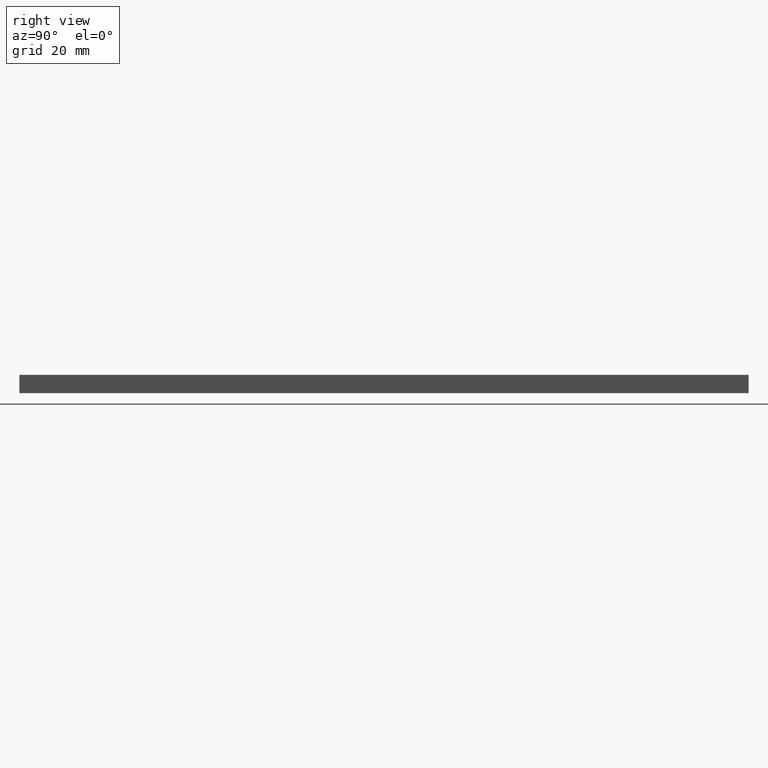
[diagram: clean part render]
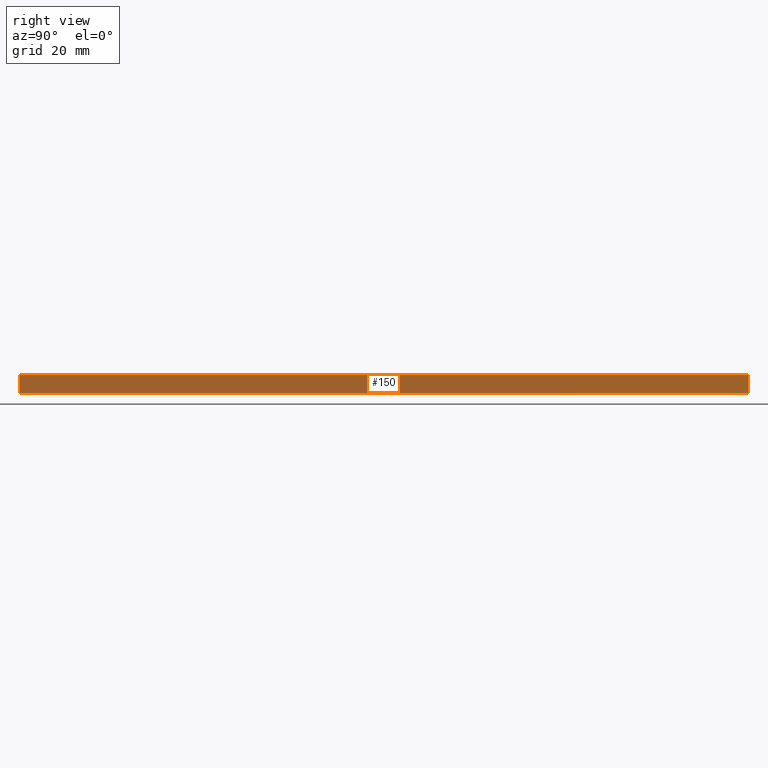
[diagram: same view with one face highlighted and labeled with its STEP entity id]
A machine part, right view. The second image highlights one B-rep face of the part: STEP entity #150.
In plain terms, the highlighted planar face has unit normal (-1, 0, 0).
Its self-contained STEP definition (entity closure, byte-faithful):
#11 = VECTOR ( 'NONE', #155, 1000.000000000000000 ) ;
#17 = LINE ( 'NONE', #193, #11 ) ;
#28 = EDGE_CURVE ( 'NONE', #178, #85, #77, .T. ) ;
#30 = DIRECTION ( 'NONE',  ( 0.0000000000000000000, -1.000000000000000000, 0.0000000000000000000 ) ) ;
#32 = CARTESIAN_POINT ( 'NONE',  ( 15.00000000000000000, 0.0000000000000000000, 5.000000000000000000 ) ) ;
#37 = EDGE_CURVE ( 'NONE', #85, #148, #156, .T. ) ;
#40 = ORIENTED_EDGE ( 'NONE', *, *, #74, .F. ) ;
#42 = CARTESIAN_POINT ( 'NONE',  ( 15.00000000000000000, 200.0000000000000000, 0.0000000000000000000 ) ) ;
#49 = DIRECTION ( 'NONE',  ( 0.0000000000000000000, 0.0000000000000000000, -1.000000000000000000 ) ) ;
#63 = CARTESIAN_POINT ( 'NONE',  ( 15.00000000000000000, 1000.000000000000000, 0.0000000000000000000 ) ) ;
#64 = ORIENTED_EDGE ( 'NONE', *, *, #235, .F. ) ;
#74 = EDGE_CURVE ( 'NONE', #211, #148, #226, .T. ) ;
#77 = LINE ( 'NONE', #152, #164 ) ;
#85 = VERTEX_POINT ( 'NONE', #97 ) ;
#92 = EDGE_LOOP ( 'NONE', ( #160, #40, #64, #206 ) ) ;
#97 = CARTESIAN_POINT ( 'NONE',  ( 15.00000000000000000, 0.0000000000000000000, 5.000000000000000000 ) ) ;
#119 = DIRECTION ( 'NONE',  ( 0.0000000000000000000, 0.0000000000000000000, 1.000000000000000000 ) ) ;
#145 = PLANE ( 'NONE',  #195 ) ;
#148 = VERTEX_POINT ( 'NONE', #219 ) ;
#149 = VECTOR ( 'NONE', #30, 1000.000000000000000 ) ;
#150 = ADVANCED_FACE ( 'NONE', ( #232 ), #145, .F. ) ;
#152 = CARTESIAN_POINT ( 'NONE',  ( 15.00000000000000000, 1000.000000000000000, 5.000000000000000000 ) ) ;
#155 = DIRECTION ( 'NONE',  ( 0.0000000000000000000, 0.0000000000000000000, -1.000000000000000000 ) ) ;
#156 = LINE ( 'NONE', #32, #230 ) ;
#160 = ORIENTED_EDGE ( 'NONE', *, *, #37, .T. ) ;
#164 = VECTOR ( 'NONE', #182, 1000.000000000000000 ) ;
#171 = CARTESIAN_POINT ( 'NONE',  ( 15.00000000000000000, 200.0000000000000000, 5.000000000000000000 ) ) ;
#178 = VERTEX_POINT ( 'NONE', #171 ) ;
#182 = DIRECTION ( 'NONE',  ( 0.0000000000000000000, -1.000000000000000000, 0.0000000000000000000 ) ) ;
#193 = CARTESIAN_POINT ( 'NONE',  ( 15.00000000000000000, 200.0000000000000000, 5.000000000000000000 ) ) ;
#195 = AXIS2_PLACEMENT_3D ( 'NONE', #209, #229, #119 ) ;
#206 = ORIENTED_EDGE ( 'NONE', *, *, #28, .T. ) ;
#209 = CARTESIAN_POINT ( 'NONE',  ( 15.00000000000000000, 1000.000000000000000, 5.000000000000000000 ) ) ;
#211 = VERTEX_POINT ( 'NONE', #42 ) ;
#219 = CARTESIAN_POINT ( 'NONE',  ( 15.00000000000000000, 0.0000000000000000000, 0.0000000000000000000 ) ) ;
#226 = LINE ( 'NONE', #63, #149 ) ;
#229 = DIRECTION ( 'NONE',  ( -1.000000000000000000, 0.0000000000000000000, 0.0000000000000000000 ) ) ;
#230 = VECTOR ( 'NONE', #49, 1000.000000000000000 ) ;
#232 = FACE_OUTER_BOUND ( 'NONE', #92, .T. ) ;
#235 = EDGE_CURVE ( 'NONE', #178, #211, #17, .T. ) ;